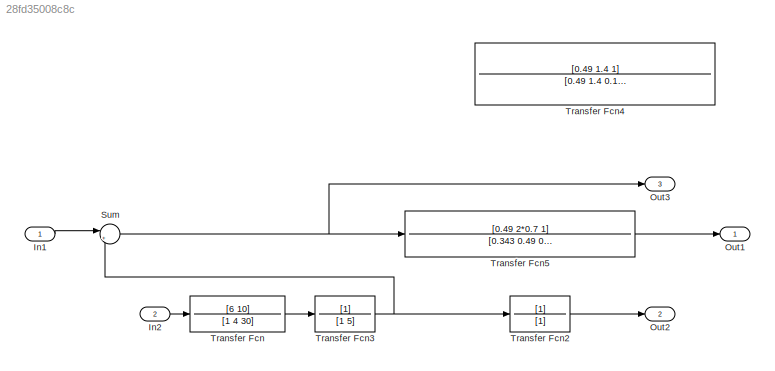
MODEL slx_28fd35008c8c
KIND model
CONFIG AbsTol = auto
CONFIG EnableMultiTasking = off
CONFIG FixedStep = auto
CONFIG MaxStep = auto
CONFIG MinStep = auto
CONFIG RelTol = 1e-3
CONFIG SampleTimeConstraint = Unconstrained
CONFIG SolverName = VariableStepAuto
CONFIG StartTime = 0.0
CONFIG StopTime = 10.0
BLOCK [Inport] In1
BLOCK [Inport] In2
  Port = 2
BLOCK [Outport] Out1
BLOCK [Outport] Out2
  Port = 2
BLOCK [Outport] Out3
  Port = 3
BLOCK [Sum] Sum
  Inputs = |+-
  Ports = [2, 1]
BLOCK [TransferFcn] Transfer Fcn
  Denominator = [1 4 30]
  Numerator = [6 10]
BLOCK [TransferFcn] Transfer Fcn2
  Denominator = [1]
BLOCK [TransferFcn] Transfer Fcn3
  Denominator = [1 5]
BLOCK [TransferFcn] Transfer Fcn4
  Commented = on
  Denominator = [0.49 1.4 0.1 0.00001]
  Numerator = [0.49 1.4 1]
BLOCK [TransferFcn] Transfer Fcn5
  Denominator = [0.343 0.49 0.7 0.00001 ]
  Numerator = [0.49 2*0.7 1]
LINE In1:1 -> Sum:1
LINE In2:1 -> Transfer Fcn:1
NET Sum:1 -> Out3:1, Transfer Fcn5:1
LINE Transfer Fcn2:1 -> Out2:1
NET Transfer Fcn3:1 -> Sum:2, Transfer Fcn2:1
LINE Transfer Fcn5:1 -> Out1:1
LINE Transfer Fcn:1 -> Transfer Fcn3:1
note: NET lines group one-source signal fan-out (src -> all destinations, sorted); 1:1 wires keep LINE
